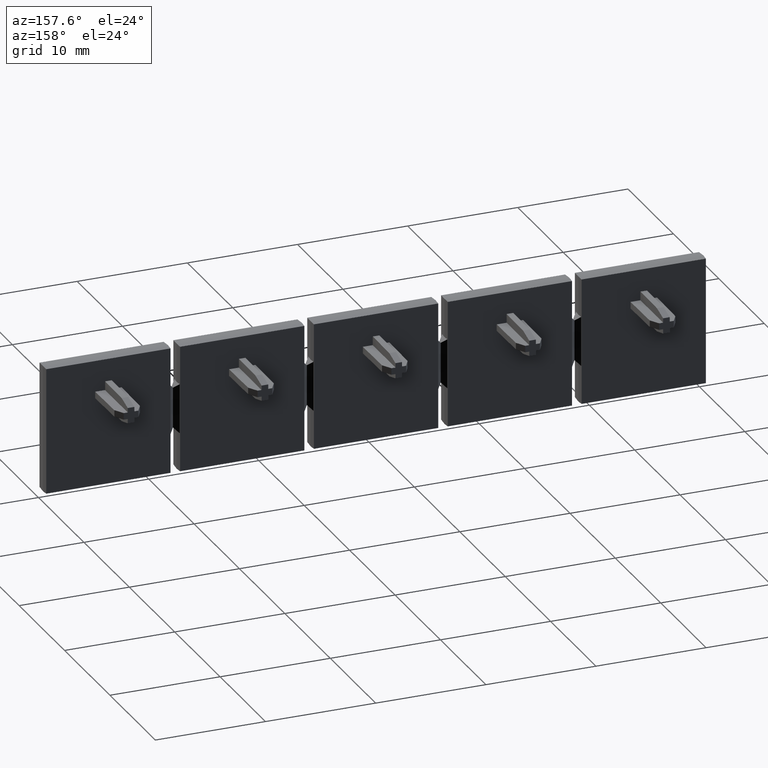
[diagram: clean part render]
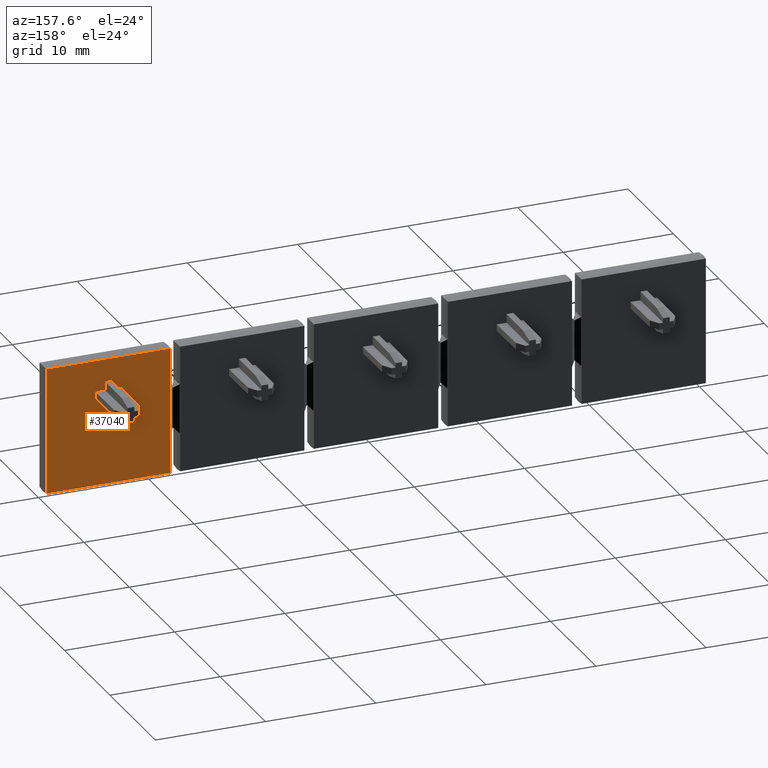
[diagram: same view with one face highlighted and labeled with its STEP entity id]
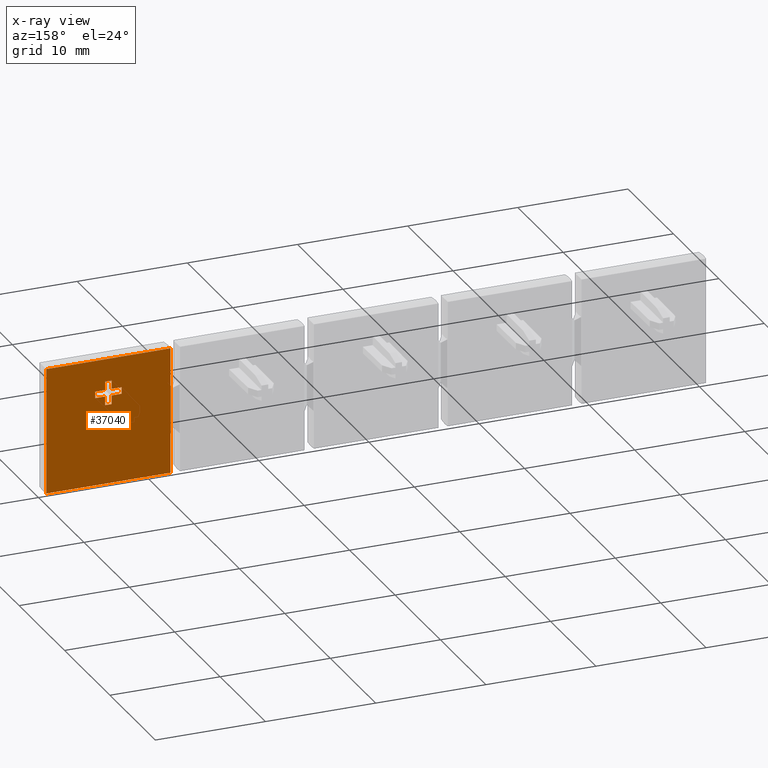
[diagram: x-ray of the same camera — body ghosted, the highlighted face saturated]
A machine part, auxiliary view. The second image highlights one B-rep face of the part: STEP entity #37040.
The next image is the same camera in x-ray: the body ghosted, the highlighted face saturated — about 0% of this face is hidden behind the body in this view.
In plain terms, the highlighted planar face has unit normal (0, 1, -0).
Its self-contained STEP definition (entity closure, byte-faithful):
#4850=CARTESIAN_POINT('',(15.9677358661498,2.91950785561409,
2.11999999998433));
#4860=VERTEX_POINT('',#4850);
#4890=CARTESIAN_POINT('',(25.1869785549862,2.91950785561404,
2.12000000000894));
#4900=DIRECTION('',(1.,-6.29799242864736E-15,2.66975915507941E-12));
#4910=VECTOR('',#4900,1.);
#4920=LINE('',#4890,#4910);
#4930=CARTESIAN_POINT('',(15.1677358661377,2.9195078556141,
2.11999999998221));
#4940=VERTEX_POINT('',#4930);
#4950=EDGE_CURVE('',#4940,#4860,#4920,.T.);
#11710=CARTESIAN_POINT('',(17.3677358661618,2.91950785561409,
2.11999999998809));
#11720=VERTEX_POINT('',#11710);
#11750=CARTESIAN_POINT('',(25.1869785549862,2.91950785561404,
2.12000000000896));
#11760=DIRECTION('',(1.,-6.29799242864736E-15,2.66975915507941E-12));
#11770=VECTOR('',#11760,1.);
#11780=LINE('',#11750,#11770);
#11790=CARTESIAN_POINT('',(16.5677358661498,2.91950785561409,
2.11999999998595));
#11800=VERTEX_POINT('',#11790);
#11810=EDGE_CURVE('',#11800,#11720,#11780,.T.);
#14280=CARTESIAN_POINT('',(13.1511106772682,2.91950785561654,
8.061625209376));
#14290=VERTEX_POINT('',#14280);
#14320=CARTESIAN_POINT('',(13.1511106773646,2.91950785563516,
53.6700000000526));
#14330=DIRECTION('',(-2.1134619990612E-12,-4.08396006638896E-13,-1.));
#14340=VECTOR('',#14330,1.);
#14350=LINE('',#14320,#14340);
#14360=CARTESIAN_POINT('',(13.1511106772444,2.91950785561193,
-3.22162520932544));
#14370=VERTEX_POINT('',#14360);
#14380=EDGE_CURVE('',#14290,#14370,#14350,.T.);
#15140=CARTESIAN_POINT('',(17.3677358660242,2.91950785563514,
53.6700000000639));
#15150=DIRECTION('',(2.66963668573623E-12,-4.08396006638927E-13,-1.));
#15160=VECTOR('',#15150,1.);
#15170=LINE('',#15140,#15160);
#15180=CARTESIAN_POINT('',(17.3677358661602,2.91950785561433,
2.71999999998808));
#15190=VERTEX_POINT('',#15180);
#15200=EDGE_CURVE('',#15190,#11720,#15170,.T.);
#18710=CARTESIAN_POINT('',(16.5677358661458,2.9195078555031,
3.61999999995656));
#18720=VERTEX_POINT('',#18710);
#18750=CARTESIAN_POINT('',(16.5677358660122,2.91950785563514,
53.6700000000617));
#18760=DIRECTION('',(-2.6697591550794E-12,4.08396006638927E-13,1.));
#18770=VECTOR('',#18760,1.);
#18780=LINE('',#18750,#18770);
#18790=CARTESIAN_POINT('',(16.5677358661482,2.91950785561433,
2.71999999998595));
#18800=VERTEX_POINT('',#18790);
#18810=EDGE_CURVE('',#18800,#18720,#18780,.T.);
#20590=CARTESIAN_POINT('',(25.1869785549846,2.91950785561428,
2.72000000000896));
#20600=DIRECTION('',(-1.,6.29799242864736E-15,-2.66975915507941E-12));
#20610=VECTOR('',#20600,1.);
#20620=LINE('',#20590,#20610);
#20630=EDGE_CURVE('',#15190,#18800,#20620,.T.);
#26540=CARTESIAN_POINT('',(15.9677358661482,2.91950785561434,
2.71999999998433));
#26550=VERTEX_POINT('',#26540);
#26580=CARTESIAN_POINT('',(15.9677358660122,2.91950785563515,
53.6700000000601));
#26590=DIRECTION('',(2.6697591550794E-12,-4.08396006638927E-13,-1.));
#26600=VECTOR('',#26590,1.);
#26610=LINE('',#26580,#26600);
#26620=CARTESIAN_POINT('',(15.9677358661458,2.9195078555031,
3.61999999995496));
#26630=VERTEX_POINT('',#26620);
#26640=EDGE_CURVE('',#26630,#26550,#26610,.T.);
#31480=CARTESIAN_POINT('',(15.9677358661522,2.91950785561373,
1.22000000001275));
#31490=VERTEX_POINT('',#31480);
#31520=CARTESIAN_POINT('',(15.9677358660122,2.91950785563515,
53.6700000000601));
#31530=DIRECTION('',(2.6697591550794E-12,-4.08396006638927E-13,-1.));
#31540=VECTOR('',#31530,1.);
#31550=LINE('',#31520,#31540);
#31560=EDGE_CURVE('',#4860,#31490,#31550,.T.);
#35090=CARTESIAN_POINT('',(15.1677358661361,2.91950785561434,
2.7199999999822));
#35100=VERTEX_POINT('',#35090);
#35130=CARTESIAN_POINT('',(25.1869785549846,2.91950785561428,
2.72000000000894));
#35140=DIRECTION('',(-1.,6.29799242864736E-15,-2.66975915507941E-12));
#35150=VECTOR('',#35140,1.);
#35160=LINE('',#35130,#35150);
#35170=EDGE_CURVE('',#26550,#35100,#35160,.T.);
#35890=CARTESIAN_POINT('',(16.5677358660122,2.91950785563514,
53.6700000000617));
#35900=DIRECTION('',(-2.6697591550794E-12,4.08396006638927E-13,1.));
#35910=VECTOR('',#35900,1.);
#35920=LINE('',#35890,#35910);
#35930=CARTESIAN_POINT('',(16.5677358661522,2.91950785561372,
1.22000000001435));
#35940=VERTEX_POINT('',#35930);
#35950=EDGE_CURVE('',#35940,#11800,#35920,.T.);
#36450=CARTESIAN_POINT('',(19.5177358456479,2.91950785561735,
10.1450000205383));
#36460=DIRECTION('',(-6.29799242973768E-15,-1.,4.0839600663891E-13));
#36470=DIRECTION('',(-1.,6.29799243060089E-15,2.11364818889553E-12));
#36480=AXIS2_PLACEMENT_3D('',#36450,#36460,#36470);
#36490=PLANE('',#36480);
#36500=ORIENTED_EDGE('',*,*,#18810,.F.);
#36510=CARTESIAN_POINT('',(25.1869785549822,2.91950785561465,
3.61999999998055));
#36520=DIRECTION('',(1.,-6.29799242864677E-15,2.67120862381053E-12));
#36530=VECTOR('',#36520,1.);
#36540=LINE('',#36510,#36530);
#36550=EDGE_CURVE('',#26630,#18720,#36540,.T.);
#36560=ORIENTED_EDGE('',*,*,#36550,.T.);
#36570=ORIENTED_EDGE('',*,*,#26640,.F.);
#36580=ORIENTED_EDGE('',*,*,#35170,.F.);
#36590=CARTESIAN_POINT('',(15.1677358660001,2.91950785563515,
53.670000000058));
#36600=DIRECTION('',(-2.66988162442258E-12,4.08396006638927E-13,1.));
#36610=VECTOR('',#36600,1.);
#36620=LINE('',#36590,#36610);
#36630=EDGE_CURVE('',#4940,#35100,#36620,.T.);
#36640=ORIENTED_EDGE('',*,*,#36630,.T.);
#36650=ORIENTED_EDGE('',*,*,#4950,.F.);
#36660=ORIENTED_EDGE('',*,*,#31560,.F.);
#36670=CARTESIAN_POINT('',(25.1869785549886,2.91950785561367,
1.22000000003735));
#36680=DIRECTION('',(-1.,6.29799242864795E-15,-2.66830968634828E-12));
#36690=VECTOR('',#36680,1.);
#36700=LINE('',#36670,#36690);
#36710=EDGE_CURVE('',#35940,#31490,#36700,.T.);
#36720=ORIENTED_EDGE('',*,*,#36710,.T.);
#36730=ORIENTED_EDGE('',*,*,#35950,.F.);
#36740=ORIENTED_EDGE('',*,*,#11810,.F.);
#36750=ORIENTED_EDGE('',*,*,#15200,.T.);
#36760=ORIENTED_EDGE('',*,*,#20630,.F.);
#36770=EDGE_LOOP('',(#36760,#36750,#36740,#36730,#36720,#36660,#36650,
#36640,#36580,#36570,#36560,#36500));
#36780=FACE_BOUND('',#36770,.T.);
#36790=CARTESIAN_POINT('',(24.584361034594,2.91950785563509,
53.6700000000831));
#36800=DIRECTION('',(2.1134619990612E-12,4.08396006638896E-13,1.));
#36810=VECTOR('',#36800,1.);
#36820=LINE('',#36790,#36810);
#36830=CARTESIAN_POINT('',(24.5843610344737,2.91950785561186,
-3.2216252093496));
#36840=VERTEX_POINT('',#36830);
#36850=CARTESIAN_POINT('',(24.5843610344976,2.91950785561647,
8.06162520935185));
#36860=VERTEX_POINT('',#36850);
#36870=EDGE_CURVE('',#36840,#36860,#36820,.T.);
#36880=ORIENTED_EDGE('',*,*,#36870,.T.);
#36890=CARTESIAN_POINT('',(25.1869785550005,2.91950785561185,
-3.22162520935088));
#36900=DIRECTION('',(1.,-6.29799243060085E-15,-2.11350431493264E-12));
#36910=VECTOR('',#36900,1.);
#36920=LINE('',#36890,#36910);
#36930=EDGE_CURVE('',#14370,#36840,#36920,.T.);
#36940=ORIENTED_EDGE('',*,*,#36930,.T.);
#36950=ORIENTED_EDGE('',*,*,#14380,.T.);
#36960=CARTESIAN_POINT('',(25.1869785549703,2.91950785561646,
8.06162520935057));
#36970=DIRECTION('',(-1.,6.29799243060081E-15,2.11341968318976E-12));
#36980=VECTOR('',#36970,1.);
#36990=LINE('',#36960,#36980);
#37000=EDGE_CURVE('',#36860,#14290,#36990,.T.);
#37010=ORIENTED_EDGE('',*,*,#37000,.T.);
#37020=EDGE_LOOP('',(#37010,#36950,#36940,#36880));
#37030=FACE_OUTER_BOUND('',#37020,.T.);
#37040=ADVANCED_FACE('',(#36780,#37030),#36490,.T.);